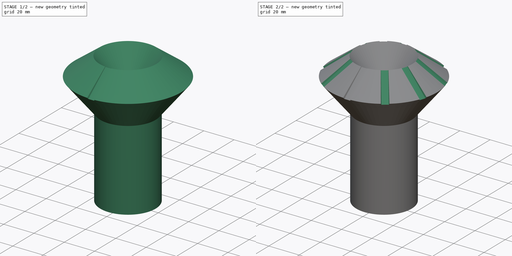
[diagram: build sequence overview — one tinted view per stage of 2, left to right]
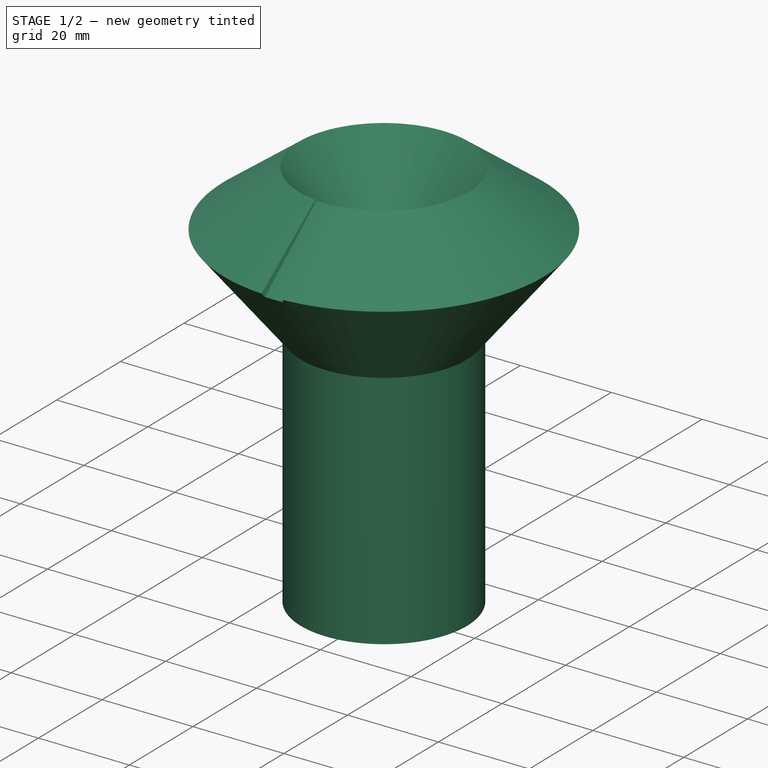
[diagram: stage 1 of 2 — iso view after this stage's code; geometry added in this stage tinted green]
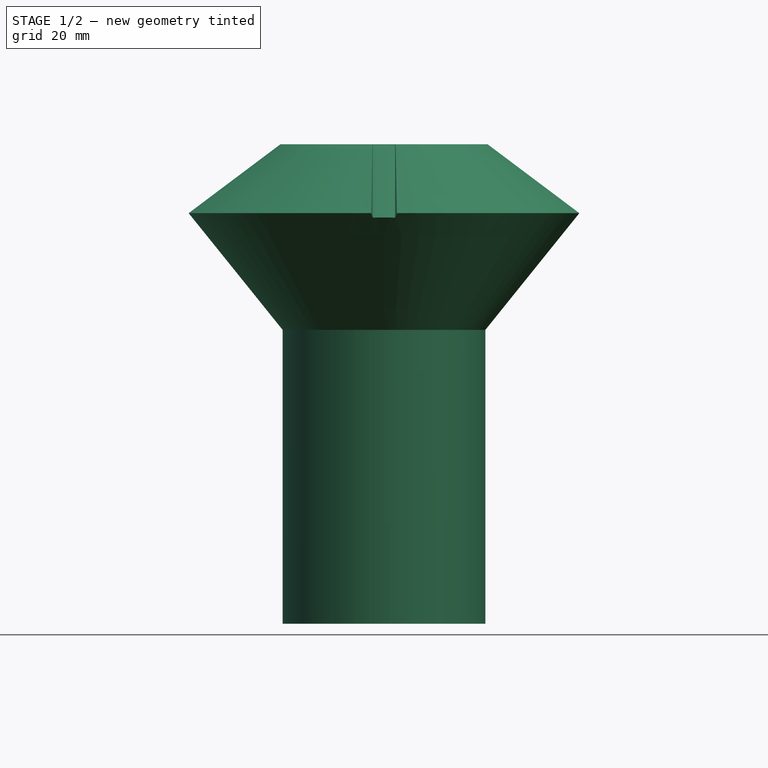
[diagram: stage 1 of 2 — front view after this stage's code; geometry added in this stage tinted green]
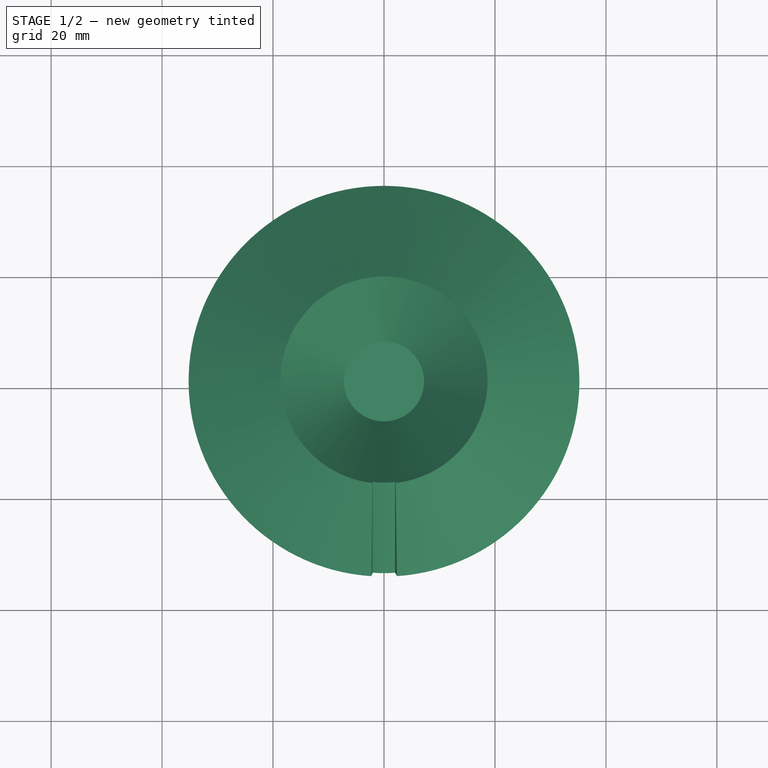
[diagram: stage 1 of 2 — top view after this stage's code; geometry added in this stage tinted green]
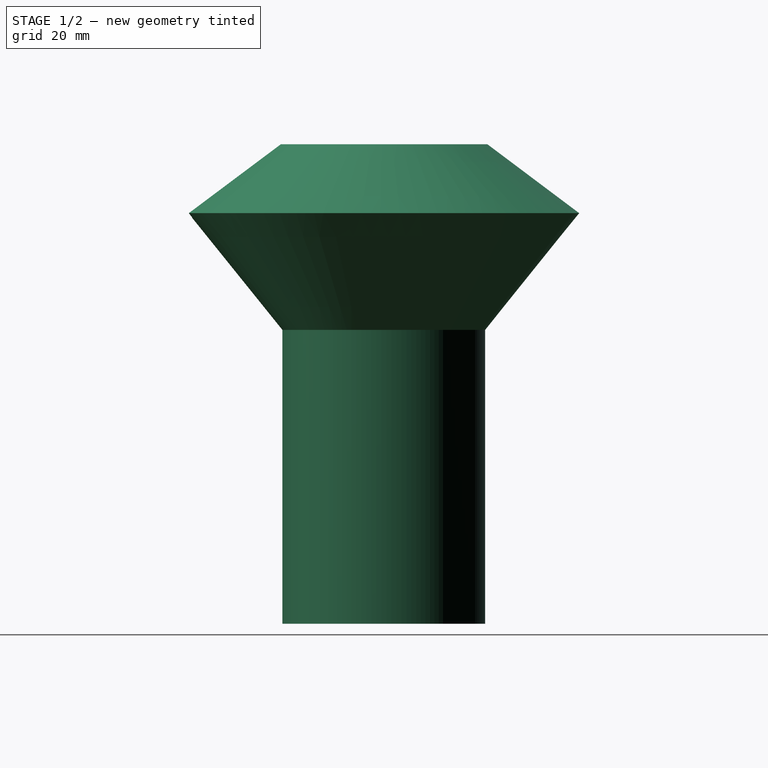
[diagram: stage 1 of 2 — right view after this stage's code; geometry added in this stage tinted green]
FCSTD DOCUMENT  (FreeCAD 0.21R33771 (Git))
Label: Machine Elment Design2
License: All rights reserved
LicenseURL: http://en.wikipedia.org/wiki/All_rights_reserved
objects: Sketcher::SketchObject×2, PartDesign::Revolution×1, PartDesign::Pocket×1, PartDesign::PolarPattern×1, PartDesign::Body×1
note: 8 computed .brp shape members not serialized (recipe doc carries the construction recipe); baked Part::Feature solids carry a one-line shape summary decoded from their .brp

FEATURE [Sketcher::SketchObject] Sketch003
  FullyConstrained = false
  MapMode = 2
  Placement = pos=(0,0,0) rot=(0.57735,0.57735,0.57735;2.0944rad)
  Support = -> [Sketch003]
  sketch-geometry (7):
    g0: LineSegment StartX=0 StartY=-52.9685 StartZ=0 EndX=-18.2753 EndY=-52.9685 EndZ=0
    g1: LineSegment StartX=-18.2753 StartY=-52.9685 StartZ=0 EndX=-18.2753 EndY=0 EndZ=0
    g2: LineSegment StartX=-18.2753 StartY=0 StartZ=0 EndX=-35.2178 EndY=21.0385 EndZ=0
    g3: LineSegment StartX=-35.2178 StartY=21.0385 StartZ=0 EndX=-18.6716 EndY=33.4568 EndZ=0
    g4: LineSegment StartX=-18.6716 StartY=33.4568 StartZ=0 EndX=-7.21202 EndY=19.2269 EndZ=0
    g5: LineSegment StartX=-7.21202 StartY=19.2269 StartZ=0 EndX=0 EndY=19.2269 EndZ=0
    g6: LineSegment StartX=0 StartY=19.2269 StartZ=0 EndX=0 EndY=-52.9685 EndZ=0
  constraints (13):
    c: PointOnObject(g0,g-2)
    c: Horizontal(g0)
    c: Coincident(g1,g0)
    c: PointOnObject(g1,g-1)
    c: Vertical(g1)
    c: Coincident(g2,g1)
    c: Coincident(g3,g2)
    c: Coincident(g4,g3)
    c: Coincident(g5,g4)
    c: PointOnObject(g5,g-2)
    c: Horizontal(g5)
    c: Parallel(g4,g2)
    c: Coincident(g6,g5)
FEATURE [PartDesign::Revolution] Revolution
  Angle = 360
  Axis = (0,0,1)
  Base = (0,0,0)
  Placement = pos=(0,0,0) rot=(0.57735,0.57735,0.57735;2.0944rad)
  Profile = -> Sketch003
  ReferenceAxis = -> Sketch003 [V_Axis]
FEATURE [Sketcher::SketchObject] Sketch004
  AttachmentOffset = pos=(0,-3,5) rot=(0,0,1;3.14159rad)
  ExternalGeometry = -> [Revolution]
  FullyConstrained = true
  MapMode = 51
  Placement = pos=(-9e-16,-5.19943,24.6995) rot=(0,-0.431732,-0.902002;3.14159rad)
  Support = -> [Revolution]
  sketch-geometry (5):
    g0: ArcOfCircle CenterX=-1e-15 CenterY=-7.52349 CenterZ=0 NormalX=0 NormalY=0 NormalZ=1 AngleXU=0 Radius=22.5 StartAngle=1.48179 EndAngle=1.6598
    g1: ArcOfCircle CenterX=26 CenterY=7.88745 CenterZ=0 NormalX=0 NormalY=0 NormalZ=1 AngleXU=0 Radius=25 StartAngle=2.49809 EndAngle=2.8578
    g2: ArcOfCircle CenterX=-26 CenterY=7.88745 CenterZ=0 NormalX=0 NormalY=0 NormalZ=1 AngleXU=0 Radius=25 StartAngle=0.283794 EndAngle=0.643501
    g3: ArcOfCircle CenterX=-1e-15 CenterY=-7.52349 CenterZ=0 NormalX=0 NormalY=0 NormalZ=1 AngleXU=0 Radius=30.9972 StartAngle=1.376 EndAngle=1.76559
    g4: GeomPoint X=2.09241 Y=15.1968 Z=0
  constraints (16):
    c: Coincident(g0,g-3)
    c: Coincident(g1,g0)
    c: Coincident(g2,g0)
    c: Coincident(g3,g0)
    c: Coincident(g3,g2)
    c: Coincident(g3,g1)
    c: Horizontal(g2,g1)
    c: Horizontal(g0,g0)
    c: Equal(g1,g2)
    c: PointOnObject(g4,g1)
    c: PointOnObject(g4,g-4)
    c: Diameter(g0) = 45
    c: Diameter(g1) = 50
    c: DistanceX(g0,g0) = 4
    c: DistanceX(g-1,g1) = 6
    c: DistanceY(g0,g1) = 8
FEATURE [PartDesign::Pocket] Pocket001
  BaseFeature = -> Revolution
  Direction = (1e-16,-0.778846,-0.627215)
  Length = 5
  Length2 = 5
  Placement = pos=(0,0,0) rot=(0.57735,0.57735,0.57735;2.0944rad)
  Profile = -> Sketch004
  ReferenceAxis = -> Sketch004 [N_Axis]
  Type = 1
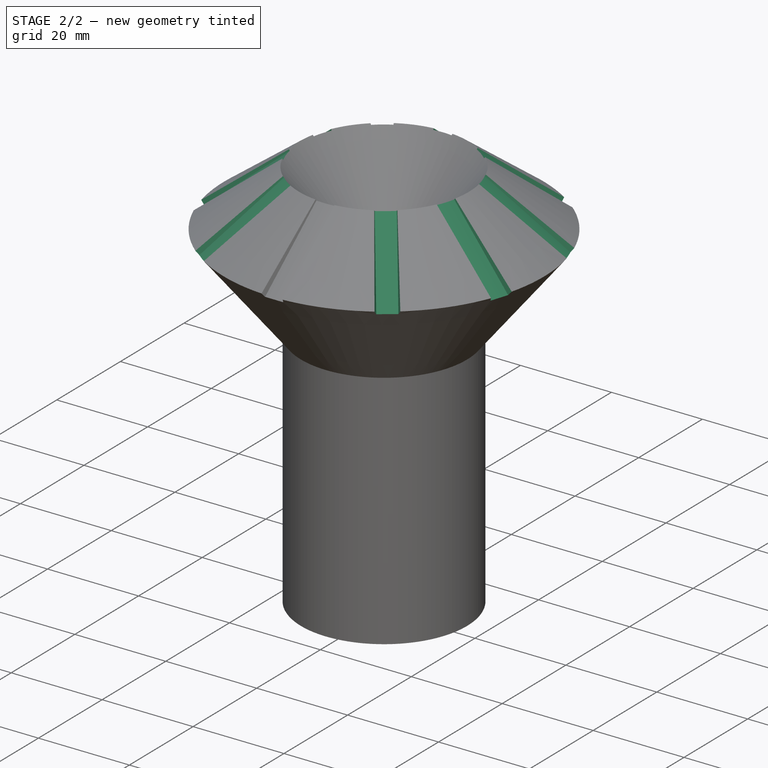
[diagram: stage 2 of 2 — iso view after this stage's code; geometry added in this stage tinted green]
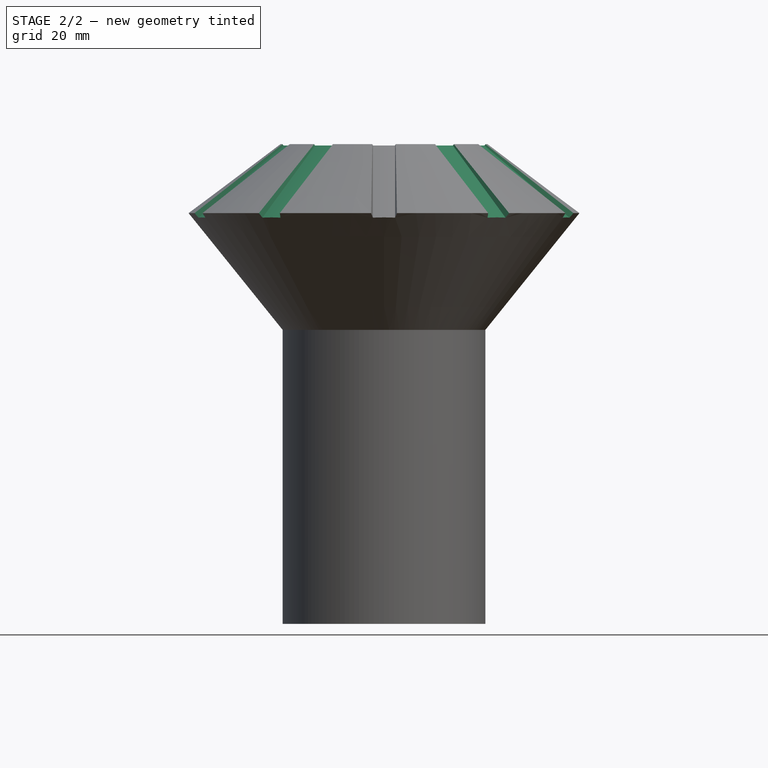
[diagram: stage 2 of 2 — front view after this stage's code; geometry added in this stage tinted green]
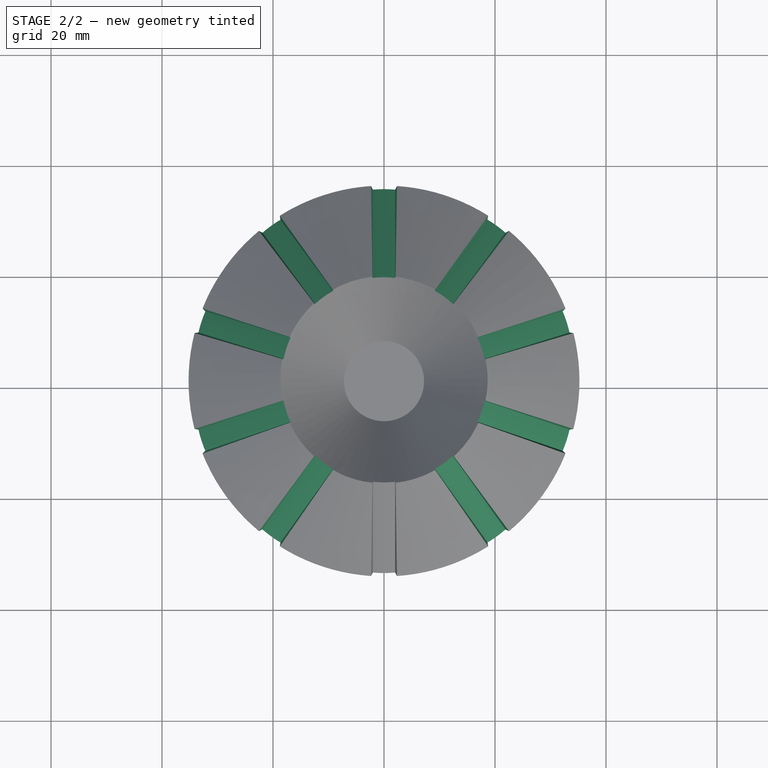
[diagram: stage 2 of 2 — top view after this stage's code; geometry added in this stage tinted green]
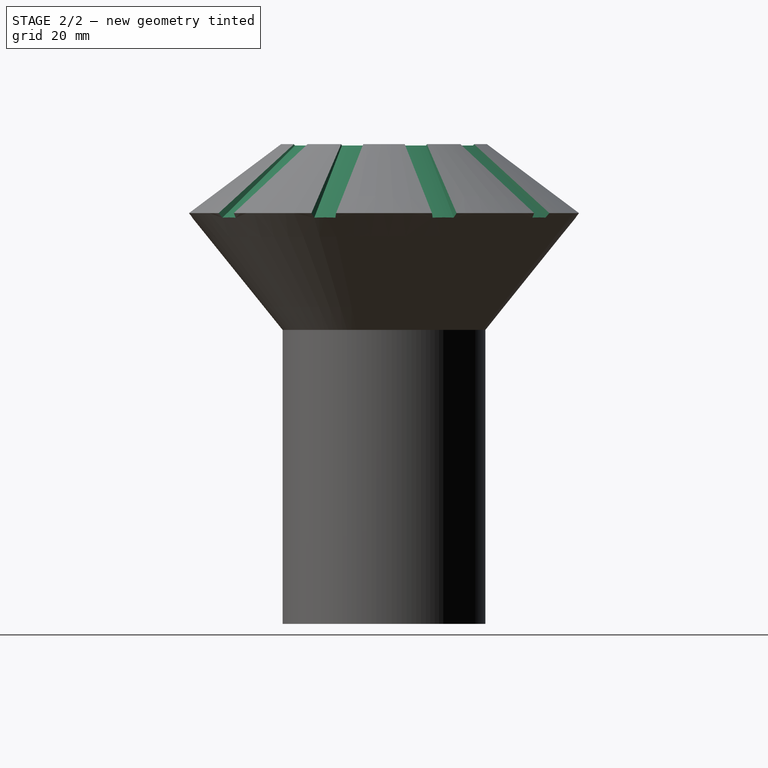
[diagram: stage 2 of 2 — right view after this stage's code; geometry added in this stage tinted green]
FEATURE [PartDesign::PolarPattern] PolarPattern
  Angle = 360
  Axis = -> Z_Axis002
  BaseFeature = -> Pocket001
  Occurrences = 10
  Originals = -> [Pocket001]
  Placement = pos=(0,0,0) rot=(0.57735,0.57735,0.57735;2.0944rad)
FEATURE [PartDesign::Body] Body002  label="Bevel Gear"
  Group = -> [Sketch003,Revolution,Sketch004,Pocket001,PolarPattern]
  Origin = -> Origin002
  Tip = -> PolarPattern
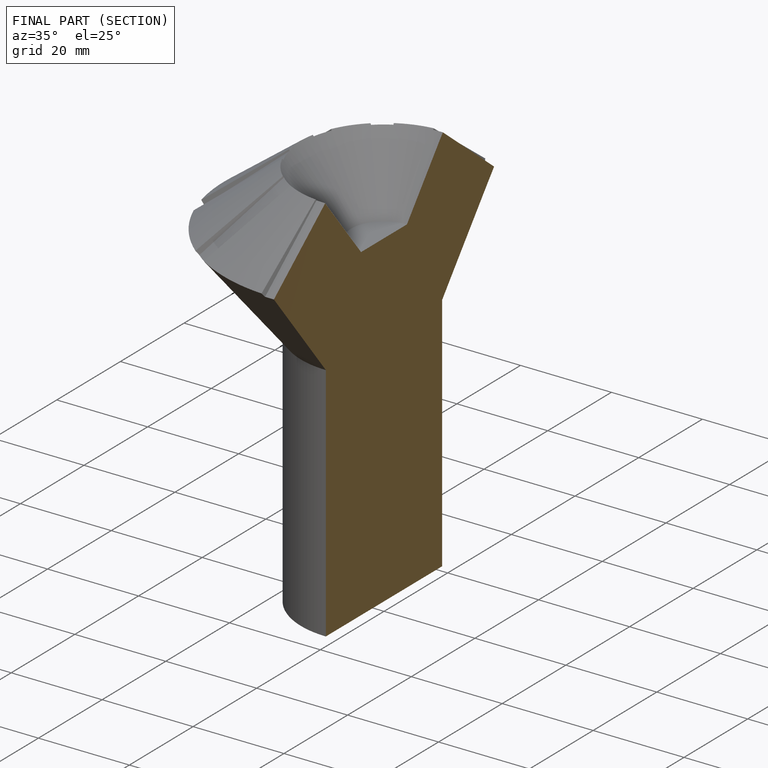
[diagram: finished part — half-section view (interior)]
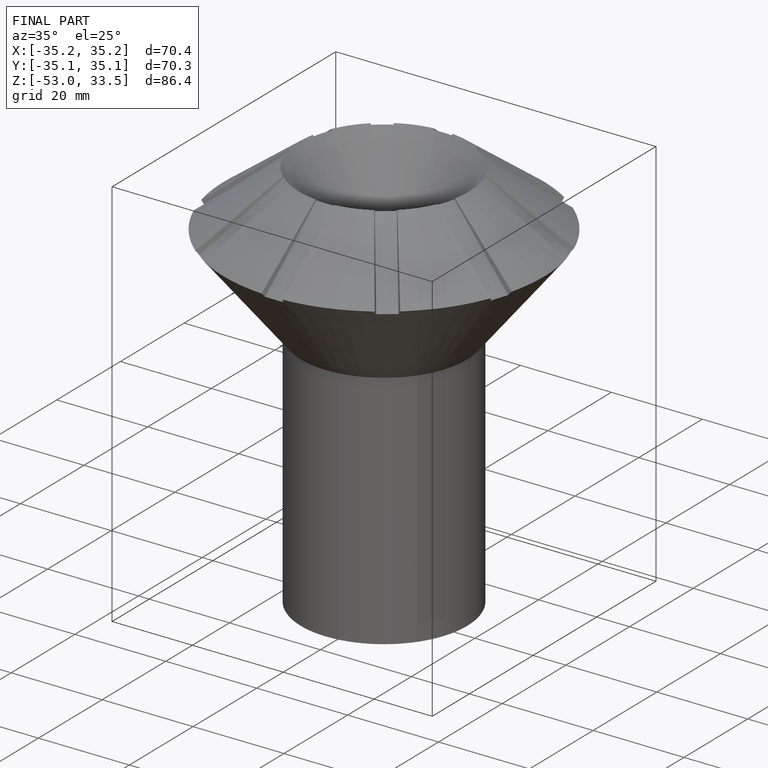
[diagram: finished part — iso view with bounding-box wireframe]
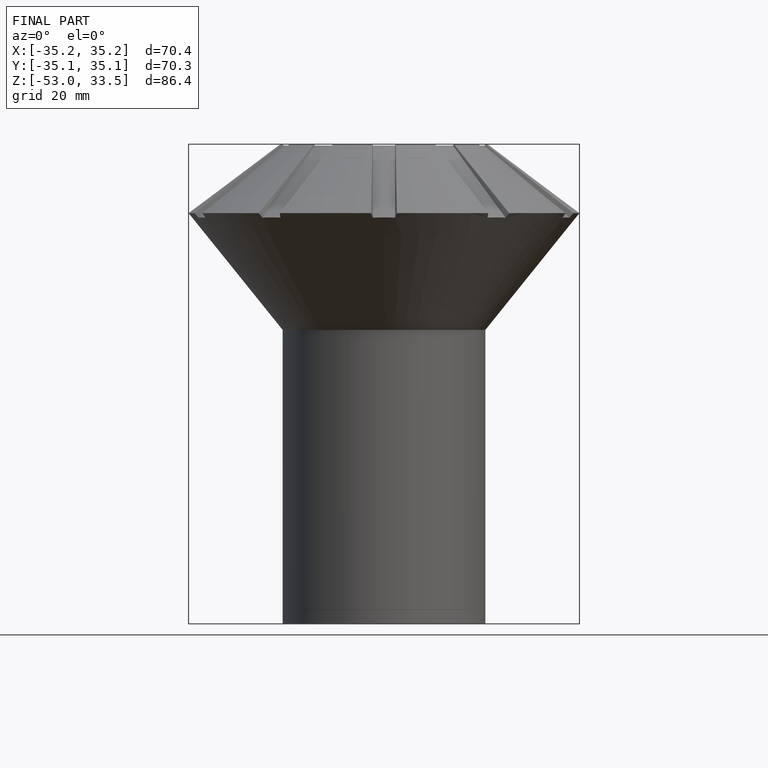
[diagram: finished part — front view with bounding-box wireframe]
